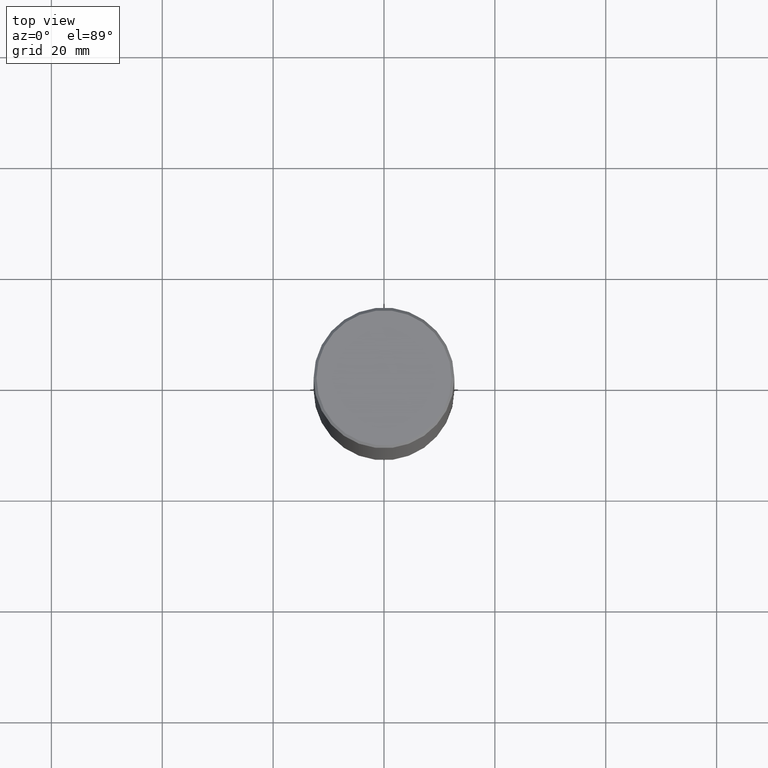
[diagram: clean part render]
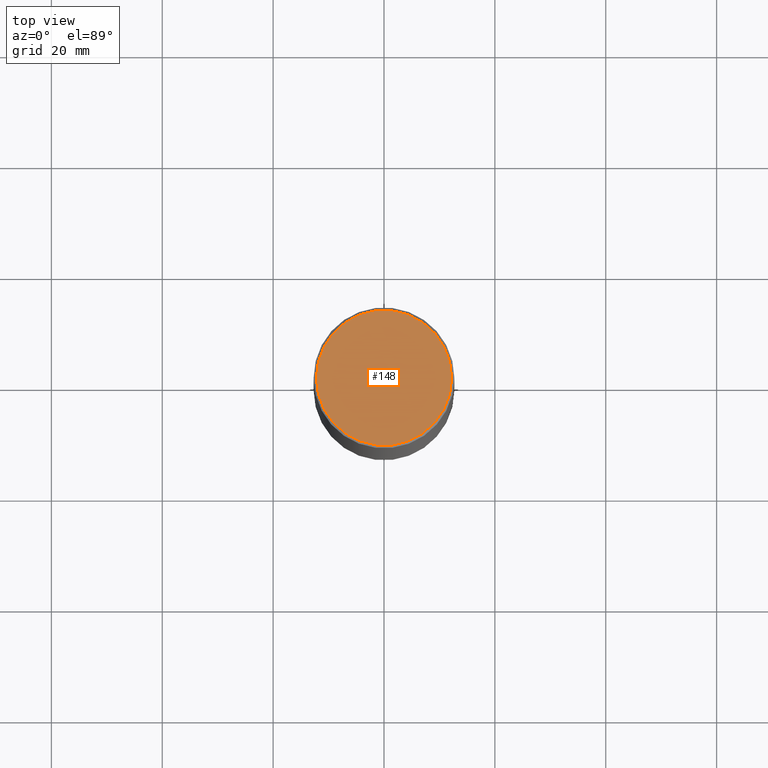
[diagram: same view with one face highlighted and labeled with its STEP entity id]
A machine part, top view. The second image highlights one B-rep face of the part: STEP entity #148.
In plain terms, the highlighted planar face has unit normal (0, -0, -1).
Its self-contained STEP definition (entity closure, byte-faithful):
#48 = DIRECTION ( 'NONE',  ( -1.000000000000000000, 6.982962677686265922E-15, -4.876176775795935793E-29 ) ) ;
#64 = DIRECTION ( 'NONE',  ( 1.000000000000000000, -6.982962677686267499E-15, 4.876431871984425487E-29 ) ) ;
#82 = EDGE_CURVE ( 'NONE', #134, #218, #295, .T. ) ;
#96 = ORIENTED_EDGE ( 'NONE', *, *, #114, .T. ) ;
#114 = EDGE_CURVE ( 'NONE', #218, #134, #222, .T. ) ;
#134 = VERTEX_POINT ( 'NONE', #387 ) ;
#148 = ADVANCED_FACE ( 'NONE', ( #358 ), #250, .F. ) ;
#163 = CARTESIAN_POINT ( 'NONE',  ( 0.4799999999999988165, -3.396558832296475394E-15, 1.707404996042524007E-17 ) ) ;
#218 = VERTEX_POINT ( 'NONE', #163 ) ;
#222 = CIRCLE ( 'NONE', #331, 0.4799999999999988165 ) ;
#239 = CARTESIAN_POINT ( 'NONE',  ( -4.175405657340879278E-46, 5.961372681521788801E-32, 1.707404996040164512E-17 ) ) ;
#240 = ORIENTED_EDGE ( 'NONE', *, *, #82, .T. ) ;
#244 = DIRECTION ( 'NONE',  ( 2.438088387897960049E-29, -3.491481338843145188E-15, -1.000000000000000000 ) ) ;
#250 = PLANE ( 'NONE',  #339 ) ;
#289 = CARTESIAN_POINT ( 'NONE',  ( 3.351822085289399659E-15, 0.4799999999999988165, -1.667374017664504893E-15 ) ) ;
#295 = CIRCLE ( 'NONE', #427, 0.4799999999999988165 ) ;
#318 = DIRECTION ( 'NONE',  ( 1.000000000000000000, -6.982962677686267499E-15, 4.876431871984425487E-29 ) ) ;
#331 = AXIS2_PLACEMENT_3D ( 'NONE', #239, #430, #318 ) ;
#339 = AXIS2_PLACEMENT_3D ( 'NONE', #289, #244, #48 ) ;
#358 = FACE_OUTER_BOUND ( 'NONE', #492, .T. ) ;
#362 = CARTESIAN_POINT ( 'NONE',  ( -4.175405657340879278E-46, 5.961372681521788801E-32, 1.707404996040164512E-17 ) ) ;
#383 = DIRECTION ( 'NONE',  ( -2.445468806185136597E-29, 3.491481338843145583E-15, 1.000000000000000000 ) ) ;
#387 = CARTESIAN_POINT ( 'NONE',  ( -0.4799999999999988165, 3.386736898677831703E-15, 1.707404996037808406E-17 ) ) ;
#427 = AXIS2_PLACEMENT_3D ( 'NONE', #362, #383, #64 ) ;
#430 = DIRECTION ( 'NONE',  ( -2.445468806185136597E-29, 3.491481338843145583E-15, 1.000000000000000000 ) ) ;
#492 = EDGE_LOOP ( 'NONE', ( #240, #96 ) ) ;